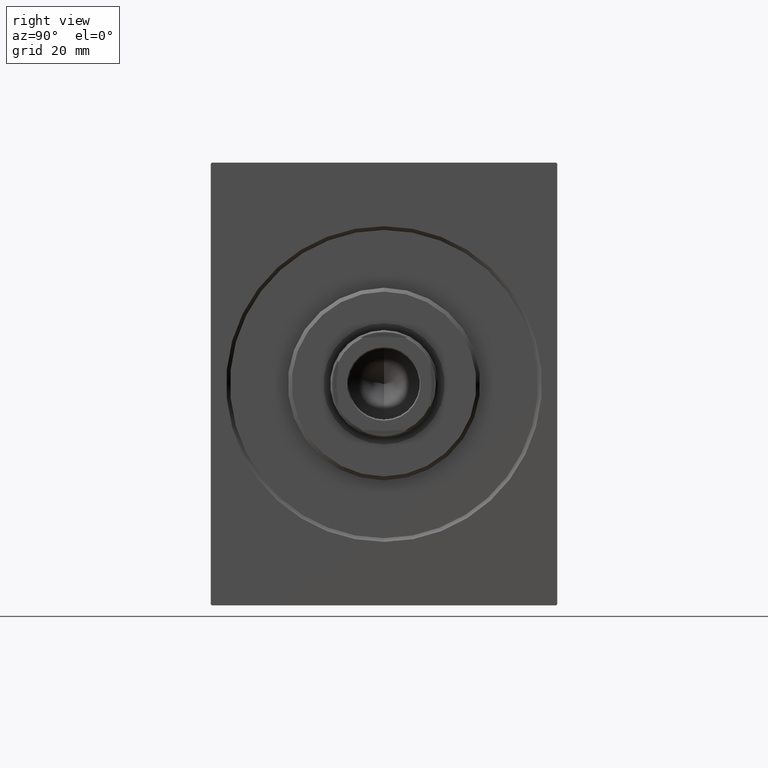
[diagram: clean part render]
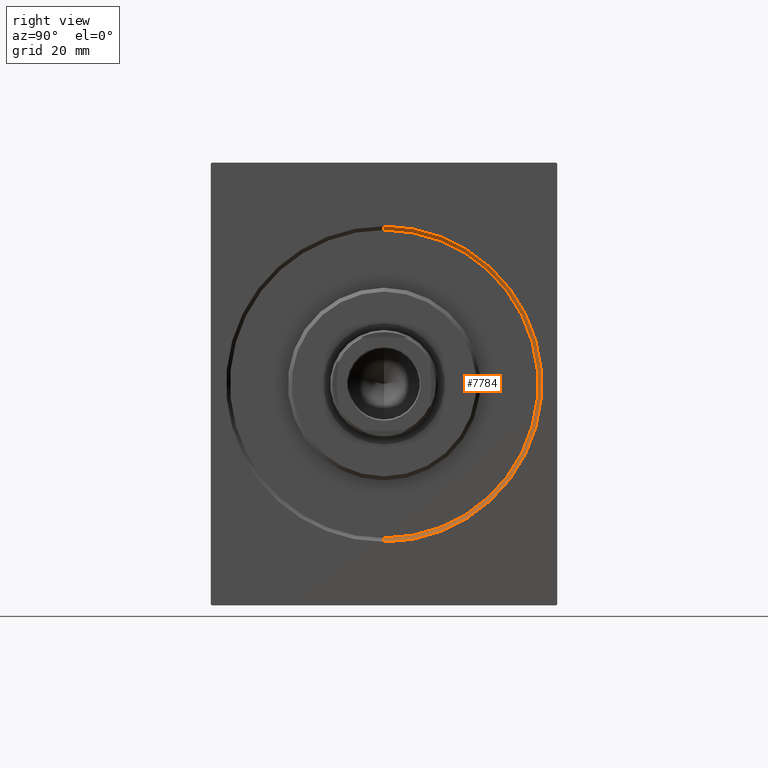
[diagram: same view with one face highlighted and labeled with its STEP entity id]
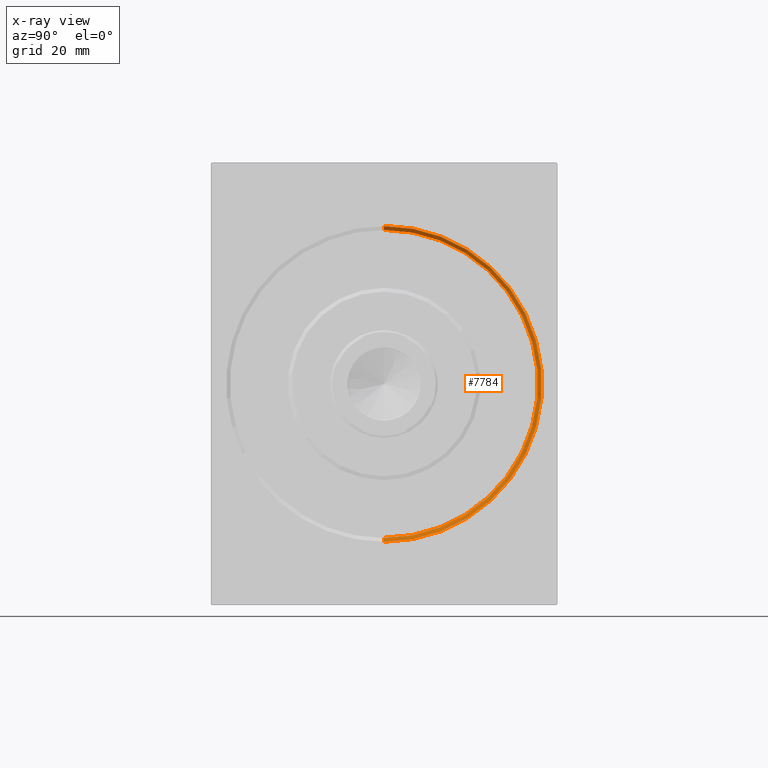
[diagram: x-ray of the same camera — body ghosted, the highlighted face saturated]
A machine part, right view. The second image highlights one B-rep face of the part: STEP entity #7784.
The next image is the same camera in x-ray: the body ghosted, the highlighted face saturated — about 0% of this face is hidden behind the body in this view.
In plain terms, the highlighted conical surface has half-angle 45 deg.
Its self-contained STEP definition (entity closure, byte-faithful):
#1559 = CARTESIAN_POINT ( 'NONE',  ( 1.000000000000007772, 0.000000000000000000, 40.00000000000000000 ) ) ;
#2946 = CARTESIAN_POINT ( 'NONE',  ( 1.000000000000007772, 4.898587196589413026E-15, -40.00000000000000000 ) ) ;
#4588 = ORIENTED_EDGE ( 'NONE', *, *, #9035, .F. ) ;
#6625 = ORIENTED_EDGE ( 'NONE', *, *, #23937, .F. ) ;
#7784 = ADVANCED_FACE ( 'NONE', ( #36167 ), #23765, .F. ) ;
#9035 = EDGE_CURVE ( 'NONE', #32334, #40867, #40989, .T. ) ;
#9072 = DIRECTION ( 'NONE',  ( 1.000000000000000000, 0.000000000000000000, -0.000000000000000000 ) ) ;
#10085 = AXIS2_PLACEMENT_3D ( 'NONE', #25890, #9072, #35327 ) ;
#12807 = CIRCLE ( 'NONE', #10085, 41.00000000000000711 ) ;
#12951 = CARTESIAN_POINT ( 'NONE',  ( 0.000000000000000000, 0.000000000000000000, 41.00000000000000711 ) ) ;
#13368 = DIRECTION ( 'NONE',  ( -0.7071067811865474617, 8.659560562354932858E-17, -0.7071067811865474617 ) ) ;
#13722 = DIRECTION ( 'NONE',  ( -1.000000000000000000, 0.000000000000000000, 0.000000000000000000 ) ) ;
#15492 = VECTOR ( 'NONE', #13368, 1000.000000000000114 ) ;
#15509 = DIRECTION ( 'NONE',  ( -1.000000000000000000, 0.000000000000000000, 0.000000000000000000 ) ) ;
#16147 = CARTESIAN_POINT ( 'NONE',  ( 1.000000000000007772, 0.000000000000000000, 0.000000000000000000 ) ) ;
#18269 = AXIS2_PLACEMENT_3D ( 'NONE', #37170, #13722, #30096 ) ;
#19410 = CARTESIAN_POINT ( 'NONE',  ( 1.000000000000007772, 4.898587196589413026E-15, -40.00000000000000000 ) ) ;
#21033 = AXIS2_PLACEMENT_3D ( 'NONE', #16147, #15509, #32500 ) ;
#21601 = DIRECTION ( 'NONE',  ( -0.7071067811865474617, 0.000000000000000000, 0.7071067811865474617 ) ) ;
#23765 = CONICAL_SURFACE ( 'NONE', #21033, 40.00000000000000000, 0.7853981633974482790 ) ;
#23937 = EDGE_CURVE ( 'NONE', #24916, #42453, #12807, .T. ) ;
#24916 = VERTEX_POINT ( 'NONE', #12951 ) ;
#25890 = CARTESIAN_POINT ( 'NONE',  ( 0.000000000000000000, 0.000000000000000000, 0.000000000000000000 ) ) ;
#30096 = DIRECTION ( 'NONE',  ( 0.000000000000000000, 0.000000000000000000, -1.000000000000000000 ) ) ;
#30880 = CARTESIAN_POINT ( 'NONE',  ( 1.000000000000007772, 0.000000000000000000, 40.00000000000000000 ) ) ;
#31057 = ORIENTED_EDGE ( 'NONE', *, *, #38035, .F. ) ;
#31059 = LINE ( 'NONE', #1559, #33319 ) ;
#32072 = EDGE_LOOP ( 'NONE', ( #4588, #40444, #6625, #31057 ) ) ;
#32334 = VERTEX_POINT ( 'NONE', #2946 ) ;
#32500 = DIRECTION ( 'NONE',  ( 0.000000000000000000, 0.000000000000000000, 1.000000000000000000 ) ) ;
#33173 = LINE ( 'NONE', #19410, #15492 ) ;
#33319 = VECTOR ( 'NONE', #21601, 1000.000000000000114 ) ;
#35327 = DIRECTION ( 'NONE',  ( 0.000000000000000000, 0.000000000000000000, -1.000000000000000000 ) ) ;
#36167 = FACE_OUTER_BOUND ( 'NONE', #32072, .T. ) ;
#37170 = CARTESIAN_POINT ( 'NONE',  ( 1.000000000000007772, 0.000000000000000000, 0.000000000000000000 ) ) ;
#38035 = EDGE_CURVE ( 'NONE', #40867, #24916, #31059, .T. ) ;
#39257 = CARTESIAN_POINT ( 'NONE',  ( 0.000000000000000000, 5.021051876504148963E-15, -41.00000000000000711 ) ) ;
#40444 = ORIENTED_EDGE ( 'NONE', *, *, #42041, .T. ) ;
#40867 = VERTEX_POINT ( 'NONE', #30880 ) ;
#40989 = CIRCLE ( 'NONE', #18269, 40.00000000000000000 ) ;
#42041 = EDGE_CURVE ( 'NONE', #32334, #42453, #33173, .T. ) ;
#42453 = VERTEX_POINT ( 'NONE', #39257 ) ;